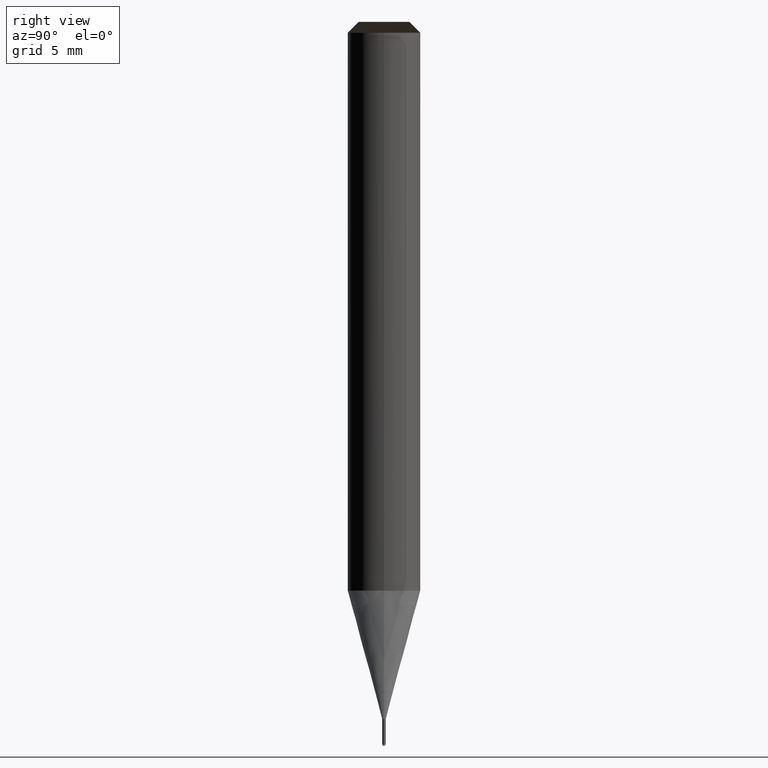
[diagram: clean part render]
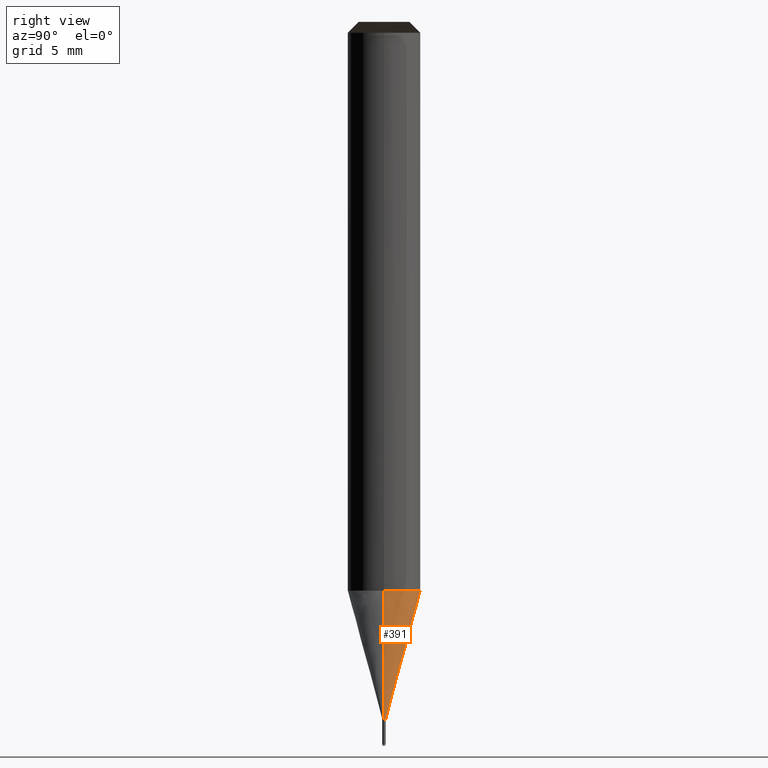
[diagram: same view with one face highlighted and labeled with its STEP entity id]
A machine part, right view. The second image highlights one B-rep face of the part: STEP entity #391.
In plain terms, the highlighted face is a freeform B-spline surface patch.
Its self-contained STEP definition (entity closure, byte-faithful):
#190=CARTESIAN_POINT('',(0.1,0.0,-7.090896534381));
#191=CARTESIAN_POINT('',(0.1,0.1,-7.090896534381));
#192=CARTESIAN_POINT('',(0.0,0.1,-7.090896534381));
#193=CARTESIAN_POINT('',(-0.1,0.1,-7.090896534381));
#194=CARTESIAN_POINT('',(-0.1,0.0,-7.090896534381));
#195=CARTESIAN_POINT('',(2.0,0.0,0.0));
#196=CARTESIAN_POINT('',(2.0,2.0,0.0));
#197=CARTESIAN_POINT('',(0.0,2.0,0.0));
#198=CARTESIAN_POINT('',(-2.0,2.0,0.0));
#199=CARTESIAN_POINT('',(-2.0,0.0,0.0));
#372=(
BOUNDED_SURFACE()
B_SPLINE_SURFACE(1,2,(
(#190,#191,#192,#193,#194),
(#195,#196,#197,#198,#199)
), .UNSPECIFIED.,.F.,.F.,.F.)
B_SPLINE_SURFACE_WITH_KNOTS((2,2),(3,2,3),(
0.0,1.0),(
0.0,0.5,1.0), .UNSPECIFIED.)
GEOMETRIC_REPRESENTATION_ITEM()
RATIONAL_B_SPLINE_SURFACE(((1.0,0.707106781187,1.0,0.707106781187,1.0),
(1.0,0.707106781187,1.0,0.707106781187,1.0)
))
REPRESENTATION_ITEM('')
SURFACE()
);
#373=(
BOUNDED_CURVE()
B_SPLINE_CURVE(2,(#195,#196,#197,#198,#199),.UNSPECIFIED.,.F.,.F.)
B_SPLINE_CURVE_WITH_KNOTS((3,2,3),
(0.0,0.5,1.0),.UNSPECIFIED.)
CURVE()
GEOMETRIC_REPRESENTATION_ITEM()
RATIONAL_B_SPLINE_CURVE((1.0,0.707106781187,1.0,0.707106781187,1.0))
REPRESENTATION_ITEM('')
);
#374=(
BOUNDED_CURVE()
B_SPLINE_CURVE(1,(#199,#194),.UNSPECIFIED.,.F.,.F.)
B_SPLINE_CURVE_WITH_KNOTS((2,2),
(0.0,1.0),.UNSPECIFIED.)
CURVE()
GEOMETRIC_REPRESENTATION_ITEM()
RATIONAL_B_SPLINE_CURVE((1.0,1.0))
REPRESENTATION_ITEM('')
);
#375=(
BOUNDED_CURVE()
B_SPLINE_CURVE(2,(#194,#193,#192,#191,#190),.UNSPECIFIED.,.F.,.F.)
B_SPLINE_CURVE_WITH_KNOTS((3,2,3),
(0.0,0.5,1.0),.UNSPECIFIED.)
CURVE()
GEOMETRIC_REPRESENTATION_ITEM()
RATIONAL_B_SPLINE_CURVE((1.0,0.707106781187,1.0,0.707106781187,1.0))
REPRESENTATION_ITEM('')
);
#376=(
BOUNDED_CURVE()
B_SPLINE_CURVE(1,(#190,#195),.UNSPECIFIED.,.F.,.F.)
B_SPLINE_CURVE_WITH_KNOTS((2,2),
(0.0,1.0),.UNSPECIFIED.)
CURVE()
GEOMETRIC_REPRESENTATION_ITEM()
RATIONAL_B_SPLINE_CURVE((1.0,1.0))
REPRESENTATION_ITEM('')
);
#377=VERTEX_POINT('',#190);
#378=VERTEX_POINT('',#194);
#379=VERTEX_POINT('',#195);
#380=VERTEX_POINT('',#199);
#381=EDGE_CURVE('',#379,#380,#373,.T.);
#382=EDGE_CURVE('',#380,#378,#374,.T.);
#383=EDGE_CURVE('',#378,#377,#375,.T.);
#384=EDGE_CURVE('',#377,#379,#376,.T.);
#385=ORIENTED_EDGE('',*,*,#381,.T.);
#386=ORIENTED_EDGE('',*,*,#382,.T.);
#387=ORIENTED_EDGE('',*,*,#383,.T.);
#388=ORIENTED_EDGE('',*,*,#384,.T.);
#389=EDGE_LOOP('',(#385,#386,#387,#388));
#390=FACE_OUTER_BOUND('',#389,.T.);
#391=ADVANCED_FACE('',(#390),#372,.T.);